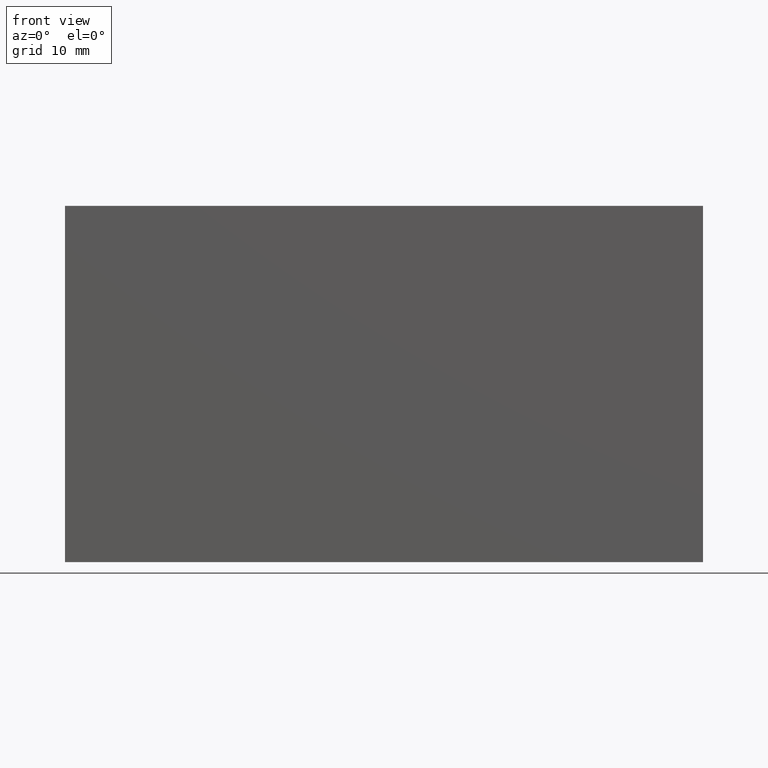
[diagram: clean part render]
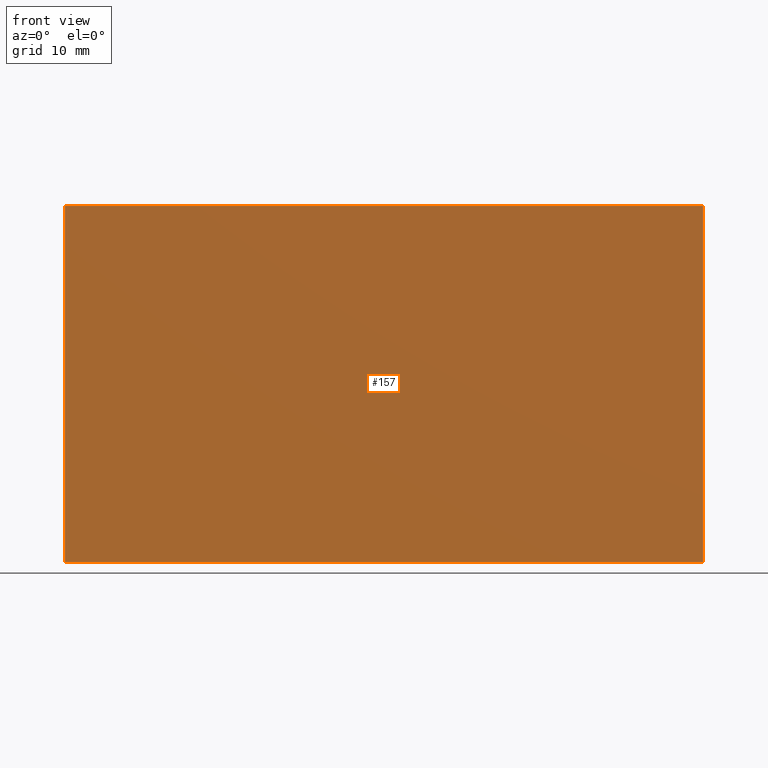
[diagram: same view with one face highlighted and labeled with its STEP entity id]
A machine part, front view. The second image highlights one B-rep face of the part: STEP entity #157.
In plain terms, the highlighted planar face has unit normal (-0, 1, 0).
Its self-contained STEP definition (entity closure, byte-faithful):
#12 = EDGE_CURVE ( 'NONE', #257, #242, #91, .T. ) ;
#13 = EDGE_CURVE ( 'NONE', #242, #214, #131, .T. ) ;
#32 = EDGE_CURVE ( 'NONE', #255, #257, #111, .T. ) ;
#33 = AXIS2_PLACEMENT_3D ( 'NONE', #224, #193, #197 ) ;
#38 = EDGE_CURVE ( 'NONE', #214, #255, #113, .T. ) ;
#63 = ORIENTED_EDGE ( 'NONE', *, *, #38, .T. ) ;
#64 = ORIENTED_EDGE ( 'NONE', *, *, #12, .T. ) ;
#80 = ORIENTED_EDGE ( 'NONE', *, *, #32, .T. ) ;
#82 = ORIENTED_EDGE ( 'NONE', *, *, #13, .T. ) ;
#85 = EDGE_LOOP ( 'NONE', ( #63, #80, #64, #82 ) ) ;
#91 = LINE ( 'NONE', #264, #98 ) ;
#98 = VECTOR ( 'NONE', #249, 1000.000000000000000 ) ;
#100 = VECTOR ( 'NONE', #219, 1000.000000000000000 ) ;
#111 = LINE ( 'NONE', #244, #112 ) ;
#112 = VECTOR ( 'NONE', #221, 1000.000000000000000 ) ;
#113 = LINE ( 'NONE', #246, #114 ) ;
#114 = VECTOR ( 'NONE', #178, 1000.000000000000000 ) ;
#125 = FACE_OUTER_BOUND ( 'NONE', #85, .T. ) ;
#131 = LINE ( 'NONE', #250, #100 ) ;
#157 = ADVANCED_FACE ( 'NONE', ( #125 ), #261, .F. ) ;
#178 = DIRECTION ( 'NONE',  ( 0.0000000000000000000, 0.0000000000000000000, 1.000000000000000000 ) ) ;
#193 = DIRECTION ( 'NONE',  ( -0.0000000000000000000, 1.000000000000000000, 0.0000000000000000000 ) ) ;
#197 = DIRECTION ( 'NONE',  ( 0.0000000000000000000, -0.0000000000000000000, 1.000000000000000000 ) ) ;
#205 = CARTESIAN_POINT ( 'NONE',  ( 30.00000000000000000, 0.0000000000000000000, 16.75000000000000000 ) ) ;
#214 = VERTEX_POINT ( 'NONE', #284 ) ;
#219 = DIRECTION ( 'NONE',  ( 1.000000000000000000, 0.0000000000000000000, -0.0000000000000000000 ) ) ;
#221 = DIRECTION ( 'NONE',  ( -1.000000000000000000, 0.0000000000000000000, -0.0000000000000000000 ) ) ;
#224 = CARTESIAN_POINT ( 'NONE',  ( 0.0000000000000000000, 0.0000000000000000000, 0.0000000000000000000 ) ) ;
#242 = VERTEX_POINT ( 'NONE', #283 ) ;
#244 = CARTESIAN_POINT ( 'NONE',  ( -30.00000000000000000, 0.0000000000000000000, 16.75000000000000000 ) ) ;
#246 = CARTESIAN_POINT ( 'NONE',  ( 30.00000000000000000, 0.0000000000000000000, 16.75000000000000000 ) ) ;
#249 = DIRECTION ( 'NONE',  ( 0.0000000000000000000, 0.0000000000000000000, -1.000000000000000000 ) ) ;
#250 = CARTESIAN_POINT ( 'NONE',  ( 30.00000000000000000, 0.0000000000000000000, -16.75000000000000000 ) ) ;
#255 = VERTEX_POINT ( 'NONE', #205 ) ;
#257 = VERTEX_POINT ( 'NONE', #277 ) ;
#261 = PLANE ( 'NONE',  #33 ) ;
#264 = CARTESIAN_POINT ( 'NONE',  ( -30.00000000000000000, 0.0000000000000000000, -16.75000000000000000 ) ) ;
#277 = CARTESIAN_POINT ( 'NONE',  ( -30.00000000000000000, 0.0000000000000000000, 16.75000000000000000 ) ) ;
#283 = CARTESIAN_POINT ( 'NONE',  ( -30.00000000000000000, 0.0000000000000000000, -16.75000000000000000 ) ) ;
#284 = CARTESIAN_POINT ( 'NONE',  ( 30.00000000000000000, 0.0000000000000000000, -16.75000000000000000 ) ) ;